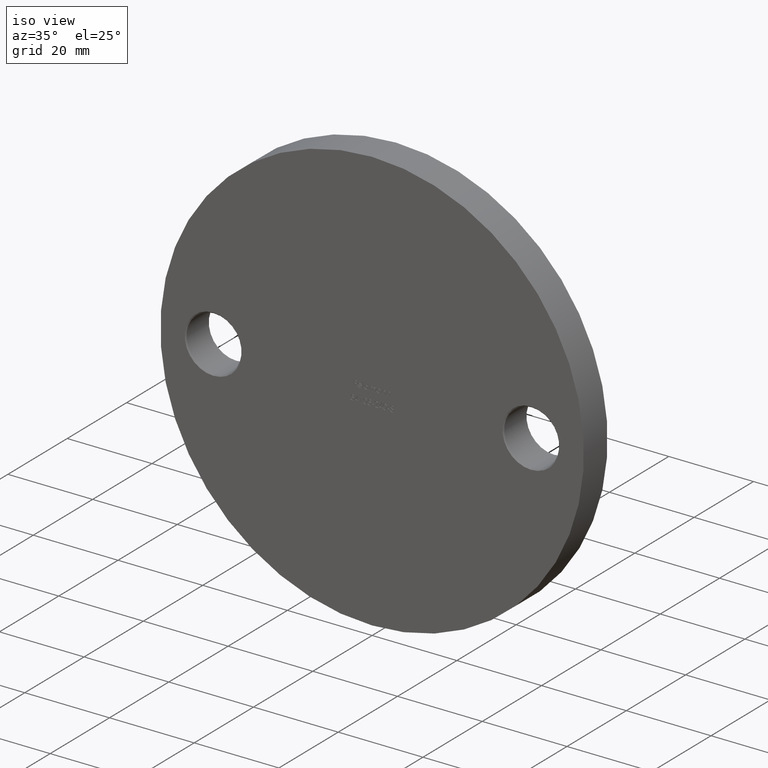
[diagram: clean part render]
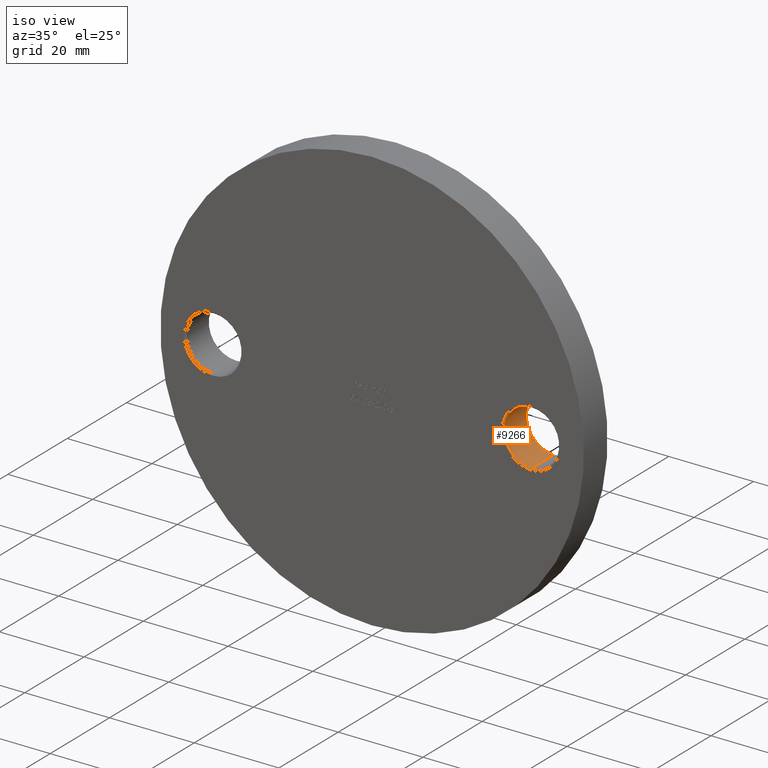
[diagram: same view with one face highlighted and labeled with its STEP entity id]
A machine part, iso view. The second image highlights one B-rep face of the part: STEP entity #9266.
In plain terms, the highlighted cylindrical surface (edge-blend (fillet) strip) has radius 6.5 mm, axis along (-0, -1, -0).
Its self-contained STEP definition (entity closure, byte-faithful):
#92 = DIRECTION ( 'NONE',  ( -0.000000000000000000, -1.000000000000000000, -0.000000000000000000 ) ) ;
#258 = CARTESIAN_POINT ( 'NONE',  ( 37.50000000000000000, 0.2499999999999828748, -6.500000000000009770 ) ) ;
#870 = CIRCLE ( 'NONE', #12286, 6.500000000000000888 ) ;
#991 = EDGE_CURVE ( 'NONE', #5349, #9513, #5930, .T. ) ;
#1461 = EDGE_CURVE ( 'NONE', #11780, #5349, #13679, .T. ) ;
#2209 = CARTESIAN_POINT ( 'NONE',  ( 37.50000000000000000, 8.000000000000000000, -9.184850993605148733E-15 ) ) ;
#2363 = VECTOR ( 'NONE', #11747, 1000.000000000000000 ) ;
#2372 = ORIENTED_EDGE ( 'NONE', *, *, #12478, .T. ) ;
#2865 = DIRECTION ( 'NONE',  ( -0.000000000000000000, -1.000000000000000000, -0.000000000000000000 ) ) ;
#3071 = FACE_OUTER_BOUND ( 'NONE', #5305, .T. ) ;
#4289 = DIRECTION ( 'NONE',  ( 0.000000000000000000, 1.000000000000000000, 0.000000000000000000 ) ) ;
#4822 = DIRECTION ( 'NONE',  ( 0.000000000000000000, 0.000000000000000000, 1.000000000000000000 ) ) ;
#5305 = EDGE_LOOP ( 'NONE', ( #2372, #7349, #10289, #7436 ) ) ;
#5349 = VERTEX_POINT ( 'NONE', #8630 ) ;
#5358 = LINE ( 'NONE', #6149, #12607 ) ;
#5564 = VERTEX_POINT ( 'NONE', #6255 ) ;
#5930 = CIRCLE ( 'NONE', #11802, 6.500000000000000888 ) ;
#6149 = CARTESIAN_POINT ( 'NONE',  ( 37.50000000000000000, 8.000000000000000000, -6.500000000000009770 ) ) ;
#6255 = CARTESIAN_POINT ( 'NONE',  ( 37.50000000000000000, 7.749999999999982236, -6.500000000000009770 ) ) ;
#6367 = EDGE_CURVE ( 'NONE', #5564, #9513, #5358, .T. ) ;
#7349 = ORIENTED_EDGE ( 'NONE', *, *, #1461, .T. ) ;
#7436 = ORIENTED_EDGE ( 'NONE', *, *, #6367, .F. ) ;
#7585 = AXIS2_PLACEMENT_3D ( 'NONE', #2209, #92, #9797 ) ;
#7778 = CARTESIAN_POINT ( 'NONE',  ( 37.50000000000000000, 7.749999999999982236, 6.499999999999991118 ) ) ;
#8011 = CARTESIAN_POINT ( 'NONE',  ( 37.50000000000000000, 0.2499999999999828748, -9.184850993605148733E-15 ) ) ;
#8630 = CARTESIAN_POINT ( 'NONE',  ( 37.50000000000000000, 0.2499999999999828748, 6.499999999999991118 ) ) ;
#9090 = DIRECTION ( 'NONE',  ( -0.000000000000000000, -1.000000000000000000, -0.000000000000000000 ) ) ;
#9266 = ADVANCED_FACE ( 'NONE', ( #3071 ), #11882, .F. ) ;
#9513 = VERTEX_POINT ( 'NONE', #258 ) ;
#9728 = CARTESIAN_POINT ( 'NONE',  ( 37.50000000000000000, 8.000000000000000000, 6.499999999999991118 ) ) ;
#9797 = DIRECTION ( 'NONE',  ( 0.000000000000000000, 0.000000000000000000, -1.000000000000000000 ) ) ;
#10289 = ORIENTED_EDGE ( 'NONE', *, *, #991, .T. ) ;
#11747 = DIRECTION ( 'NONE',  ( -0.000000000000000000, -1.000000000000000000, -0.000000000000000000 ) ) ;
#11760 = CARTESIAN_POINT ( 'NONE',  ( 37.50000000000000000, 7.749999999999982236, -9.184850993605148733E-15 ) ) ;
#11780 = VERTEX_POINT ( 'NONE', #7778 ) ;
#11802 = AXIS2_PLACEMENT_3D ( 'NONE', #8011, #9090, #4822 ) ;
#11882 = CYLINDRICAL_SURFACE ( 'NONE', #7585, 6.500000000000000888 ) ;
#12286 = AXIS2_PLACEMENT_3D ( 'NONE', #11760, #4289, #12975 ) ;
#12478 = EDGE_CURVE ( 'NONE', #5564, #11780, #870, .T. ) ;
#12607 = VECTOR ( 'NONE', #2865, 1000.000000000000000 ) ;
#12975 = DIRECTION ( 'NONE',  ( 0.000000000000000000, 0.000000000000000000, 1.000000000000000000 ) ) ;
#13679 = LINE ( 'NONE', #9728, #2363 ) ;